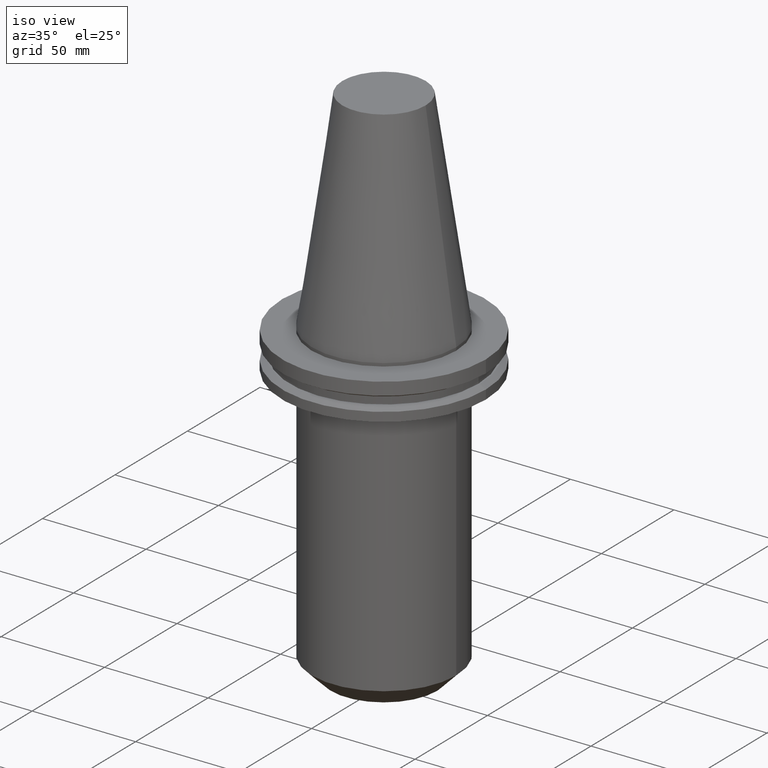
[diagram: clean part render]
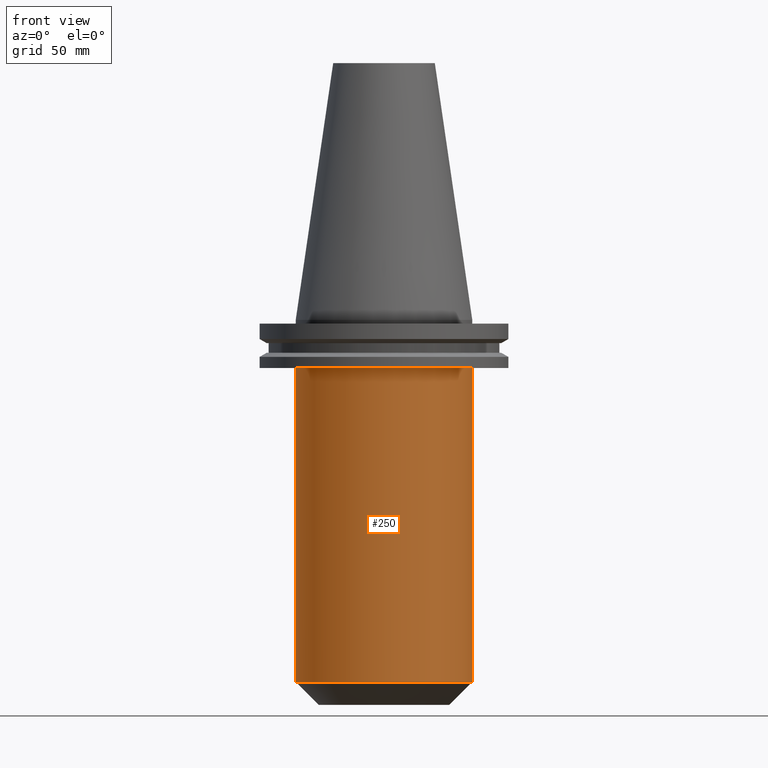
[diagram: tour spotlight — one face highlighted and labeled with its STEP entity id]
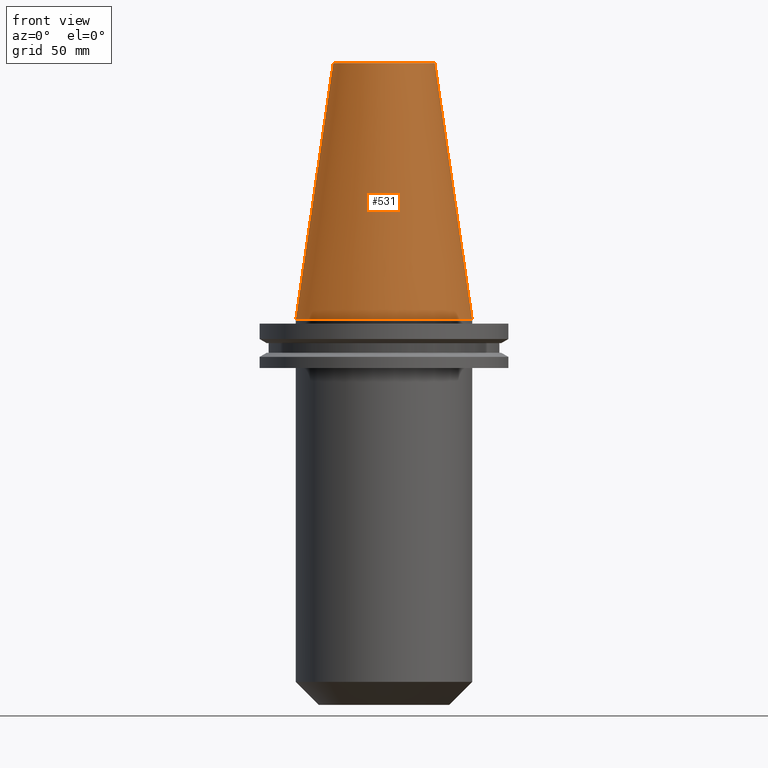
[diagram: tour spotlight — one face highlighted and labeled with its STEP entity id]
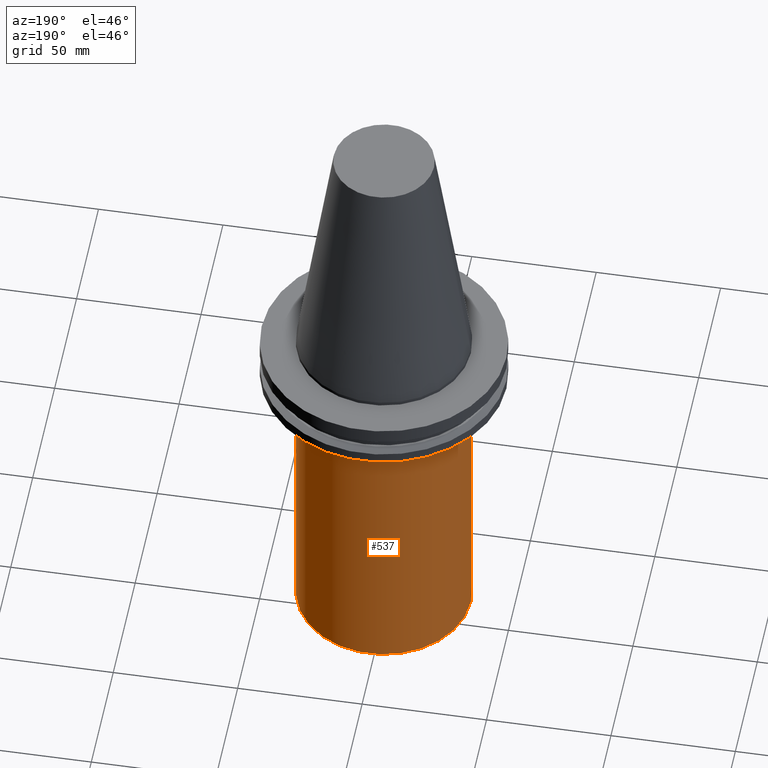
[diagram: tour spotlight — one face highlighted and labeled with its STEP entity id]
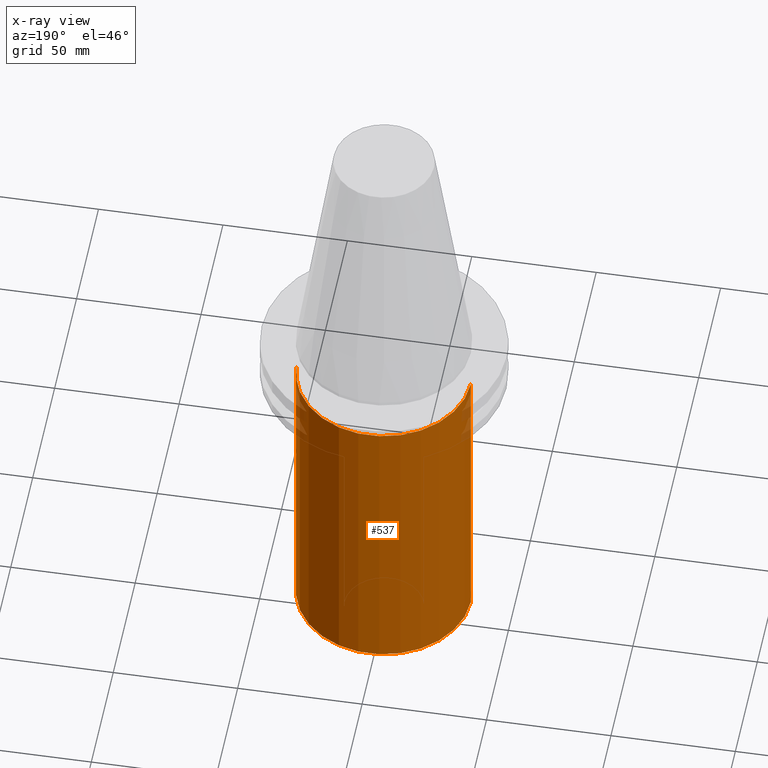
[diagram: x-ray of the same camera — body ghosted, this tour face saturated]
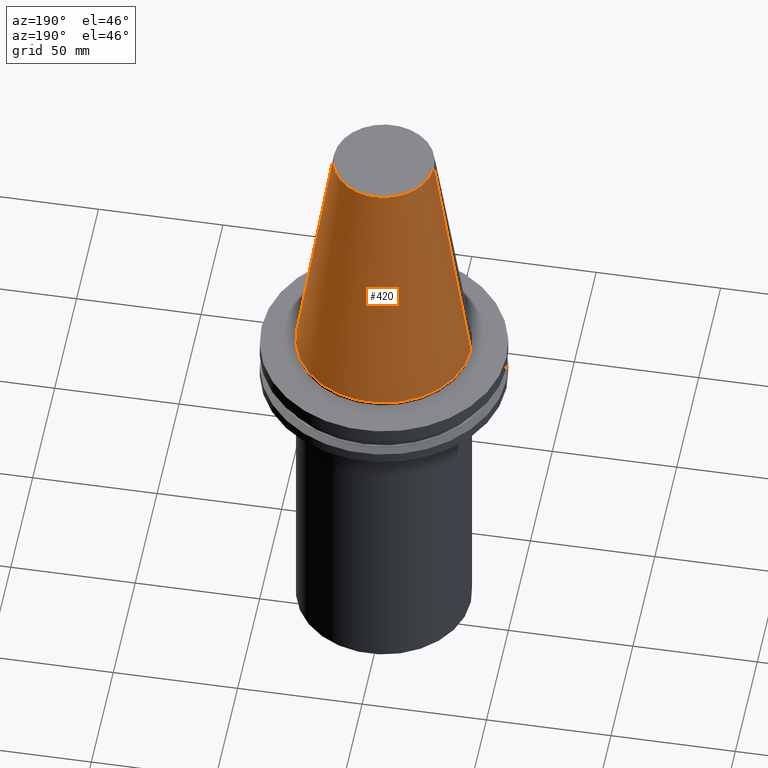
[diagram: tour spotlight — one face highlighted and labeled with its STEP entity id]
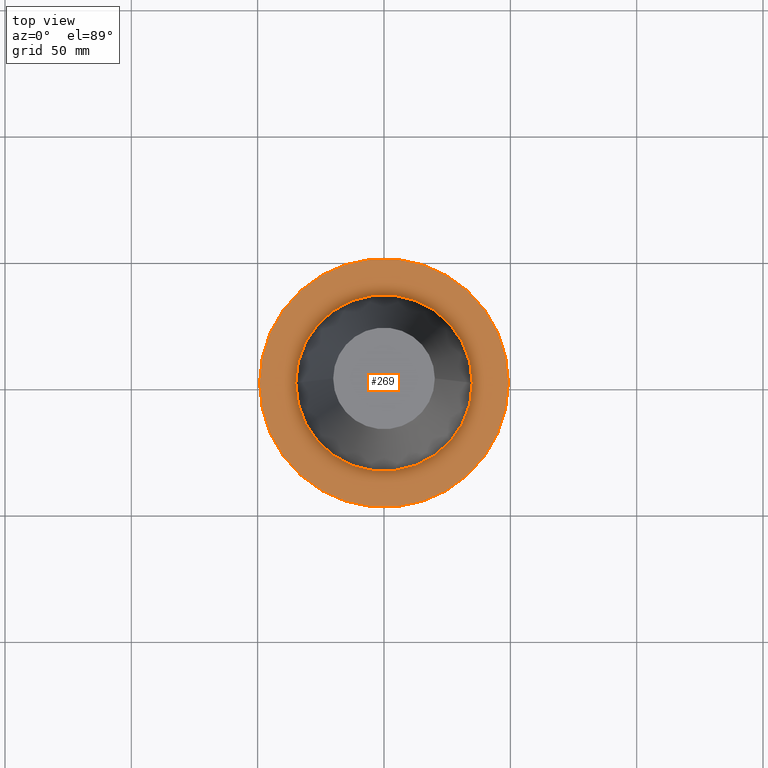
[diagram: tour spotlight — one face highlighted and labeled with its STEP entity id]
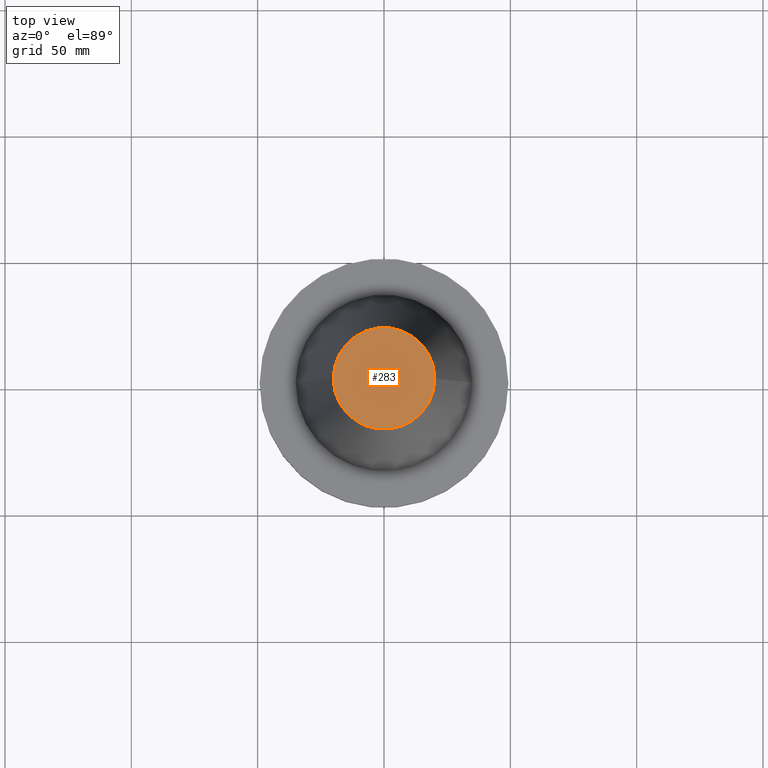
[diagram: tour spotlight — one face highlighted and labeled with its STEP entity id]
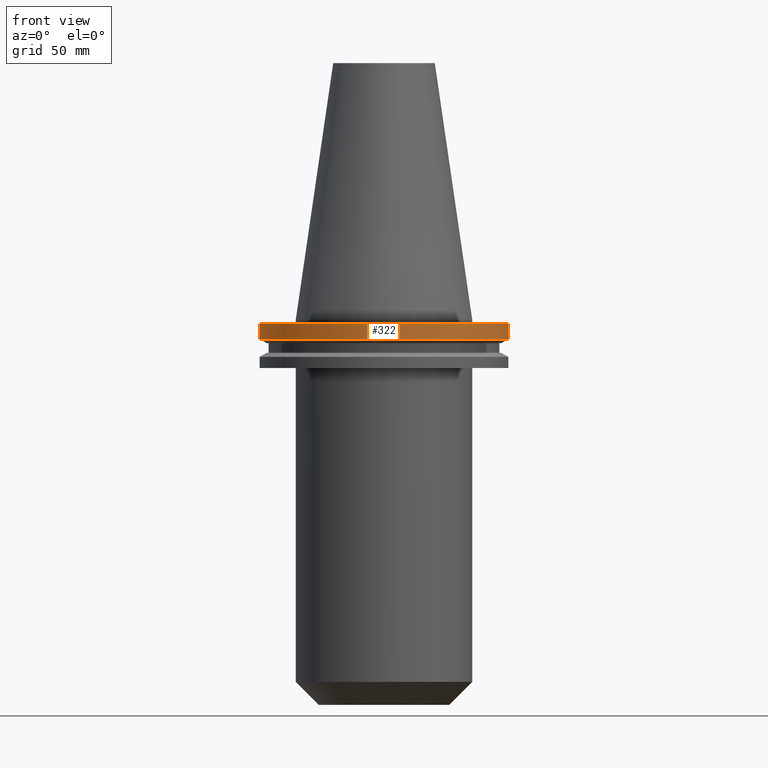
[diagram: tour spotlight — one face highlighted and labeled with its STEP entity id]
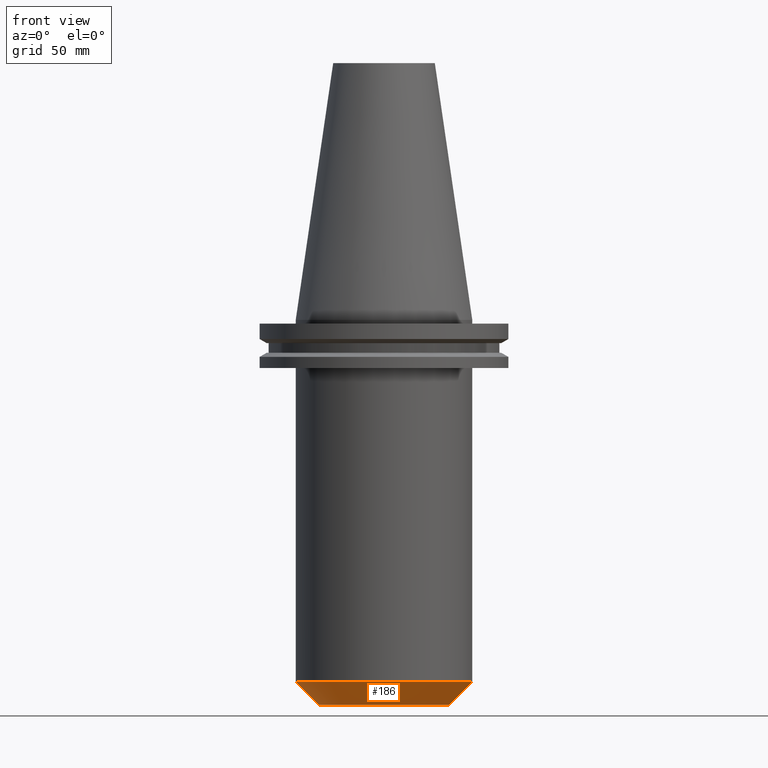
[diagram: tour spotlight — one face highlighted and labeled with its STEP entity id]
A machine part: a face-by-face anatomy tour. The part has 27 B-rep faces; the first image is the clean iso view, then the 8 largest visible faces are spotlighted one at a time (largest first), each with its STEP entity span.

Face 1 — front view, entity #250. In plain terms, the highlighted cylindrical surface (partial cylindrical patch) has radius 34.925 mm, axis along (-0, -0, 1).
Definition (entity closure, byte-faithful):
#21 = EDGE_CURVE ( 'NONE', #620, #563, #518, .T. ) ;
#36 = ORIENTED_EDGE ( 'NONE', *, *, #21, .F. ) ;
#86 = CYLINDRICAL_SURFACE ( 'NONE', #568, 34.92499999999999716 ) ;
#93 = ORIENTED_EDGE ( 'NONE', *, *, #560, .T. ) ;
#95 = AXIS2_PLACEMENT_3D ( 'NONE', #370, #355, #303 ) ;
#98 = EDGE_CURVE ( 'NONE', #361, #620, #316, .T. ) ;
#171 = CARTESIAN_POINT ( 'NONE',  ( -34.92500000000000426, 4.277078946022131676E-15, -143.3000000000000114 ) ) ;
#179 = EDGE_LOOP ( 'NONE', ( #643, #93, #447, #36 ) ) ;
#250 = ADVANCED_FACE ( 'NONE', ( #469 ), #86, .T. ) ;
#253 = CARTESIAN_POINT ( 'NONE',  ( -34.92499999999999716, 4.277078946022130887E-15, 101.5999999999999943 ) ) ;
#278 = DIRECTION ( 'NONE',  ( -0.000000000000000000, -0.000000000000000000, 1.000000000000000000 ) ) ;
#303 = DIRECTION ( 'NONE',  ( 1.000000000000000000, 0.000000000000000000, 0.000000000000000000 ) ) ;
#316 = LINE ( 'NONE', #253, #400 ) ;
#352 = LINE ( 'NONE', #596, #401 ) ;
#355 = DIRECTION ( 'NONE',  ( -0.000000000000000000, -0.000000000000000000, 1.000000000000000000 ) ) ;
#361 = VERTEX_POINT ( 'NONE', #171 ) ;
#370 = CARTESIAN_POINT ( 'NONE',  ( 0.000000000000000000, 0.000000000000000000, -19.04999999999999716 ) ) ;
#379 = VERTEX_POINT ( 'NONE', #481 ) ;
#380 = DIRECTION ( 'NONE',  ( -0.000000000000000000, -0.000000000000000000, 1.000000000000000000 ) ) ;
#400 = VECTOR ( 'NONE', #673, 1000.000000000000000 ) ;
#401 = VECTOR ( 'NONE', #766, 1000.000000000000000 ) ;
#424 = CIRCLE ( 'NONE', #539, 34.92500000000000426 ) ;
#445 = EDGE_CURVE ( 'NONE', #379, #563, #352, .T. ) ;
#447 = ORIENTED_EDGE ( 'NONE', *, *, #445, .T. ) ;
#469 = FACE_OUTER_BOUND ( 'NONE', #179, .T. ) ;
#481 = CARTESIAN_POINT ( 'NONE',  ( 34.92500000000000426, 0.000000000000000000, -143.3000000000000114 ) ) ;
#503 = DIRECTION ( 'NONE',  ( 1.000000000000000000, 0.000000000000000000, 0.000000000000000000 ) ) ;
#518 = CIRCLE ( 'NONE', #95, 34.92499999999999716 ) ;
#539 = AXIS2_PLACEMENT_3D ( 'NONE', #622, #380, #503 ) ;
#560 = EDGE_CURVE ( 'NONE', #361, #379, #424, .T. ) ;
#563 = VERTEX_POINT ( 'NONE', #564 ) ;
#564 = CARTESIAN_POINT ( 'NONE',  ( 34.92499999999999716, 0.000000000000000000, -19.04999999999999716 ) ) ;
#568 = AXIS2_PLACEMENT_3D ( 'NONE', #587, #278, #693 ) ;
#587 = CARTESIAN_POINT ( 'NONE',  ( 0.000000000000000000, 0.000000000000000000, 101.5999999999999943 ) ) ;
#596 = CARTESIAN_POINT ( 'NONE',  ( 34.92499999999999716, 0.000000000000000000, 101.5999999999999943 ) ) ;
#620 = VERTEX_POINT ( 'NONE', #630 ) ;
#622 = CARTESIAN_POINT ( 'NONE',  ( 0.000000000000000000, 0.000000000000000000, -143.3000000000000114 ) ) ;
#630 = CARTESIAN_POINT ( 'NONE',  ( -34.92499999999999716, 4.277078946022130887E-15, -19.04999999999999716 ) ) ;
#643 = ORIENTED_EDGE ( 'NONE', *, *, #98, .F. ) ;
#673 = DIRECTION ( 'NONE',  ( -0.000000000000000000, -0.000000000000000000, 1.000000000000000000 ) ) ;
#693 = DIRECTION ( 'NONE',  ( 1.000000000000000000, 0.000000000000000000, 0.000000000000000000 ) ) ;
#766 = DIRECTION ( 'NONE',  ( -0.000000000000000000, -0.000000000000000000, 1.000000000000000000 ) ) ;

Face 2 — front view, entity #531. In plain terms, the highlighted conical surface has half-angle 8.297 deg.
Definition (entity closure, byte-faithful):
#7 = DIRECTION ( 'NONE',  ( 0.000000000000000000, 0.000000000000000000, -1.000000000000000000 ) ) ;
#13 = AXIS2_PLACEMENT_3D ( 'NONE', #203, #569, #691 ) ;
#28 = DIRECTION ( 'NONE',  ( 1.000000000000000000, 0.000000000000000000, 0.000000000000000000 ) ) ;
#73 = ORIENTED_EDGE ( 'NONE', *, *, #631, .T. ) ;
#78 = DIRECTION ( 'NONE',  ( -0.000000000000000000, -0.000000000000000000, 1.000000000000000000 ) ) ;
#83 = EDGE_CURVE ( 'NONE', #440, #247, #675, .T. ) ;
#117 = ORIENTED_EDGE ( 'NONE', *, *, #406, .F. ) ;
#118 = AXIS2_PLACEMENT_3D ( 'NONE', #624, #7, #441 ) ;
#135 = ORIENTED_EDGE ( 'NONE', *, *, #83, .F. ) ;
#194 = VERTEX_POINT ( 'NONE', #337 ) ;
#203 = CARTESIAN_POINT ( 'NONE',  ( 0.000000000000000000, 0.000000000000000000, 101.5999999999999801 ) ) ;
#247 = VERTEX_POINT ( 'NONE', #638 ) ;
#262 = CARTESIAN_POINT ( 'NONE',  ( -34.92499999999999005, 0.000000000000000000, 0.000000000000000000 ) ) ;
#264 = CIRCLE ( 'NONE', #703, 34.92499999999999005 ) ;
#302 = LINE ( 'NONE', #541, #308 ) ;
#308 = VECTOR ( 'NONE', #592, 999.9999999999998863 ) ;
#335 = DIRECTION ( 'NONE',  ( -0.1443082272672999988, 0.000000000000000000, -0.9895327864921755756 ) ) ;
#337 = CARTESIAN_POINT ( 'NONE',  ( -34.92499999999999005, 0.000000000000000000, 0.000000000000000000 ) ) ;
#351 = ORIENTED_EDGE ( 'NONE', *, *, #727, .T. ) ;
#356 = VECTOR ( 'NONE', #335, 999.9999999999998863 ) ;
#389 = FACE_OUTER_BOUND ( 'NONE', #769, .T. ) ;
#402 = LINE ( 'NONE', #262, #356 ) ;
#406 = EDGE_CURVE ( 'NONE', #247, #570, #302, .T. ) ;
#440 = VERTEX_POINT ( 'NONE', #645 ) ;
#441 = DIRECTION ( 'NONE',  ( -1.000000000000000000, 0.000000000000000000, 0.000000000000000000 ) ) ;
#531 = ADVANCED_FACE ( 'NONE', ( #389 ), #668, .T. ) ;
#541 = CARTESIAN_POINT ( 'NONE',  ( 34.92499999999999005, 4.277078946022130098E-15, 0.000000000000000000 ) ) ;
#569 = DIRECTION ( 'NONE',  ( -0.000000000000000000, -0.000000000000000000, 1.000000000000000000 ) ) ;
#570 = VERTEX_POINT ( 'NONE', #732 ) ;
#592 = DIRECTION ( 'NONE',  ( 0.1443082272672999988, 1.767266086135277066E-17, -0.9895327864921755756 ) ) ;
#624 = CARTESIAN_POINT ( 'NONE',  ( 0.000000000000000000, 0.000000000000000000, 0.000000000000000000 ) ) ;
#631 = EDGE_CURVE ( 'NONE', #194, #570, #264, .T. ) ;
#637 = CARTESIAN_POINT ( 'NONE',  ( 0.000000000000000000, 0.000000000000000000, 0.000000000000000000 ) ) ;
#638 = CARTESIAN_POINT ( 'NONE',  ( 20.10819343178871321, 3.369811209154858606E-15, 101.5999999999999801 ) ) ;
#645 = CARTESIAN_POINT ( 'NONE',  ( -20.10819343178871321, 0.000000000000000000, 101.5999999999999801 ) ) ;
#668 = CONICAL_SURFACE ( 'NONE', #118, 34.92499999999999005, 0.1448138465474119452 ) ;
#675 = CIRCLE ( 'NONE', #13, 20.10819343178871321 ) ;
#691 = DIRECTION ( 'NONE',  ( 1.000000000000000000, 0.000000000000000000, 0.000000000000000000 ) ) ;
#703 = AXIS2_PLACEMENT_3D ( 'NONE', #637, #78, #28 ) ;
#727 = EDGE_CURVE ( 'NONE', #440, #194, #402, .T. ) ;
#732 = CARTESIAN_POINT ( 'NONE',  ( 34.92499999999999005, 4.277078946022130098E-15, 0.000000000000000000 ) ) ;
#769 = EDGE_LOOP ( 'NONE', ( #117, #135, #351, #73 ) ) ;

Face 3 — auxiliary view, entity #537. An x-ray twin of the same camera follows (body ghosted, this face saturated) — the face is partly hidden behind the body. In plain terms, the highlighted cylindrical surface (partial cylindrical patch) has radius 34.925 mm, axis along (-0, -0, 1).
Definition (entity closure, byte-faithful):
#46 = CIRCLE ( 'NONE', #562, 34.92500000000000426 ) ;
#71 = CARTESIAN_POINT ( 'NONE',  ( 0.000000000000000000, 0.000000000000000000, -19.04999999999999716 ) ) ;
#98 = EDGE_CURVE ( 'NONE', #361, #620, #316, .T. ) ;
#127 = ORIENTED_EDGE ( 'NONE', *, *, #514, .T. ) ;
#154 = CIRCLE ( 'NONE', #740, 34.92499999999999716 ) ;
#171 = CARTESIAN_POINT ( 'NONE',  ( -34.92500000000000426, 4.277078946022131676E-15, -143.3000000000000114 ) ) ;
#196 = DIRECTION ( 'NONE',  ( -0.000000000000000000, -0.000000000000000000, 1.000000000000000000 ) ) ;
#245 = DIRECTION ( 'NONE',  ( -0.000000000000000000, -0.000000000000000000, 1.000000000000000000 ) ) ;
#252 = CYLINDRICAL_SURFACE ( 'NONE', #472, 34.92499999999999716 ) ;
#253 = CARTESIAN_POINT ( 'NONE',  ( -34.92499999999999716, 4.277078946022130887E-15, 101.5999999999999943 ) ) ;
#259 = DIRECTION ( 'NONE',  ( 1.000000000000000000, 0.000000000000000000, 0.000000000000000000 ) ) ;
#311 = DIRECTION ( 'NONE',  ( 1.000000000000000000, 0.000000000000000000, 0.000000000000000000 ) ) ;
#316 = LINE ( 'NONE', #253, #400 ) ;
#318 = DIRECTION ( 'NONE',  ( -0.000000000000000000, -0.000000000000000000, 1.000000000000000000 ) ) ;
#352 = LINE ( 'NONE', #596, #401 ) ;
#361 = VERTEX_POINT ( 'NONE', #171 ) ;
#363 = ORIENTED_EDGE ( 'NONE', *, *, #98, .T. ) ;
#378 = FACE_OUTER_BOUND ( 'NONE', #480, .T. ) ;
#379 = VERTEX_POINT ( 'NONE', #481 ) ;
#400 = VECTOR ( 'NONE', #673, 1000.000000000000000 ) ;
#401 = VECTOR ( 'NONE', #766, 1000.000000000000000 ) ;
#445 = EDGE_CURVE ( 'NONE', #379, #563, #352, .T. ) ;
#452 = DIRECTION ( 'NONE',  ( 1.000000000000000000, 0.000000000000000000, 0.000000000000000000 ) ) ;
#472 = AXIS2_PLACEMENT_3D ( 'NONE', #567, #196, #311 ) ;
#480 = EDGE_LOOP ( 'NONE', ( #127, #363, #547, #722 ) ) ;
#481 = CARTESIAN_POINT ( 'NONE',  ( 34.92500000000000426, 0.000000000000000000, -143.3000000000000114 ) ) ;
#511 = CARTESIAN_POINT ( 'NONE',  ( 0.000000000000000000, 0.000000000000000000, -143.3000000000000114 ) ) ;
#514 = EDGE_CURVE ( 'NONE', #379, #361, #46, .T. ) ;
#537 = ADVANCED_FACE ( 'NONE', ( #378 ), #252, .T. ) ;
#547 = ORIENTED_EDGE ( 'NONE', *, *, #577, .F. ) ;
#562 = AXIS2_PLACEMENT_3D ( 'NONE', #511, #245, #452 ) ;
#563 = VERTEX_POINT ( 'NONE', #564 ) ;
#564 = CARTESIAN_POINT ( 'NONE',  ( 34.92499999999999716, 0.000000000000000000, -19.04999999999999716 ) ) ;
#567 = CARTESIAN_POINT ( 'NONE',  ( 0.000000000000000000, 0.000000000000000000, 101.5999999999999943 ) ) ;
#577 = EDGE_CURVE ( 'NONE', #563, #620, #154, .T. ) ;
#596 = CARTESIAN_POINT ( 'NONE',  ( 34.92499999999999716, 0.000000000000000000, 101.5999999999999943 ) ) ;
#620 = VERTEX_POINT ( 'NONE', #630 ) ;
#630 = CARTESIAN_POINT ( 'NONE',  ( -34.92499999999999716, 4.277078946022130887E-15, -19.04999999999999716 ) ) ;
#673 = DIRECTION ( 'NONE',  ( -0.000000000000000000, -0.000000000000000000, 1.000000000000000000 ) ) ;
#722 = ORIENTED_EDGE ( 'NONE', *, *, #445, .F. ) ;
#740 = AXIS2_PLACEMENT_3D ( 'NONE', #71, #318, #259 ) ;
#766 = DIRECTION ( 'NONE',  ( -0.000000000000000000, -0.000000000000000000, 1.000000000000000000 ) ) ;

Face 4 — auxiliary view, entity #420. In plain terms, the highlighted conical surface has half-angle 8.297 deg.
Definition (entity closure, byte-faithful):
#6 = EDGE_CURVE ( 'NONE', #570, #194, #330, .T. ) ;
#19 = CARTESIAN_POINT ( 'NONE',  ( 0.000000000000000000, 0.000000000000000000, 101.5999999999999801 ) ) ;
#58 = DIRECTION ( 'NONE',  ( 1.000000000000000000, 0.000000000000000000, 0.000000000000000000 ) ) ;
#88 = AXIS2_PLACEMENT_3D ( 'NONE', #19, #585, #515 ) ;
#110 = DIRECTION ( 'NONE',  ( 0.000000000000000000, 0.000000000000000000, -1.000000000000000000 ) ) ;
#163 = DIRECTION ( 'NONE',  ( -0.000000000000000000, -0.000000000000000000, 1.000000000000000000 ) ) ;
#194 = VERTEX_POINT ( 'NONE', #337 ) ;
#227 = DIRECTION ( 'NONE',  ( -1.000000000000000000, 0.000000000000000000, 0.000000000000000000 ) ) ;
#243 = ORIENTED_EDGE ( 'NONE', *, *, #6, .T. ) ;
#247 = VERTEX_POINT ( 'NONE', #638 ) ;
#262 = CARTESIAN_POINT ( 'NONE',  ( -34.92499999999999005, 0.000000000000000000, 0.000000000000000000 ) ) ;
#287 = FACE_OUTER_BOUND ( 'NONE', #683, .T. ) ;
#302 = LINE ( 'NONE', #541, #308 ) ;
#308 = VECTOR ( 'NONE', #592, 999.9999999999998863 ) ;
#320 = ORIENTED_EDGE ( 'NONE', *, *, #733, .F. ) ;
#330 = CIRCLE ( 'NONE', #615, 34.92499999999999005 ) ;
#335 = DIRECTION ( 'NONE',  ( -0.1443082272672999988, 0.000000000000000000, -0.9895327864921755756 ) ) ;
#337 = CARTESIAN_POINT ( 'NONE',  ( -34.92499999999999005, 0.000000000000000000, 0.000000000000000000 ) ) ;
#356 = VECTOR ( 'NONE', #335, 999.9999999999998863 ) ;
#359 = CARTESIAN_POINT ( 'NONE',  ( 0.000000000000000000, 0.000000000000000000, 0.000000000000000000 ) ) ;
#402 = LINE ( 'NONE', #262, #356 ) ;
#406 = EDGE_CURVE ( 'NONE', #247, #570, #302, .T. ) ;
#419 = CONICAL_SURFACE ( 'NONE', #544, 34.92499999999999005, 0.1448138465474119452 ) ;
#420 = ADVANCED_FACE ( 'NONE', ( #287 ), #419, .T. ) ;
#440 = VERTEX_POINT ( 'NONE', #645 ) ;
#450 = CIRCLE ( 'NONE', #88, 20.10819343178871321 ) ;
#515 = DIRECTION ( 'NONE',  ( 1.000000000000000000, 0.000000000000000000, 0.000000000000000000 ) ) ;
#541 = CARTESIAN_POINT ( 'NONE',  ( 34.92499999999999005, 4.277078946022130098E-15, 0.000000000000000000 ) ) ;
#544 = AXIS2_PLACEMENT_3D ( 'NONE', #359, #110, #227 ) ;
#570 = VERTEX_POINT ( 'NONE', #732 ) ;
#585 = DIRECTION ( 'NONE',  ( -0.000000000000000000, -0.000000000000000000, 1.000000000000000000 ) ) ;
#592 = DIRECTION ( 'NONE',  ( 0.1443082272672999988, 1.767266086135277066E-17, -0.9895327864921755756 ) ) ;
#612 = CARTESIAN_POINT ( 'NONE',  ( 0.000000000000000000, 0.000000000000000000, 0.000000000000000000 ) ) ;
#615 = AXIS2_PLACEMENT_3D ( 'NONE', #612, #163, #58 ) ;
#638 = CARTESIAN_POINT ( 'NONE',  ( 20.10819343178871321, 3.369811209154858606E-15, 101.5999999999999801 ) ) ;
#645 = CARTESIAN_POINT ( 'NONE',  ( -20.10819343178871321, 0.000000000000000000, 101.5999999999999801 ) ) ;
#674 = ORIENTED_EDGE ( 'NONE', *, *, #406, .T. ) ;
#683 = EDGE_LOOP ( 'NONE', ( #320, #674, #243, #718 ) ) ;
#718 = ORIENTED_EDGE ( 'NONE', *, *, #727, .F. ) ;
#727 = EDGE_CURVE ( 'NONE', #440, #194, #402, .T. ) ;
#732 = CARTESIAN_POINT ( 'NONE',  ( 34.92499999999999005, 4.277078946022130098E-15, 0.000000000000000000 ) ) ;
#733 = EDGE_CURVE ( 'NONE', #247, #440, #450, .T. ) ;

Face 5 — top view, entity #269. In plain terms, the highlighted planar face has unit normal (0, 0, -1).
Definition (entity closure, byte-faithful):
#57 = DIRECTION ( 'NONE',  ( -0.000000000000000000, -0.000000000000000000, 1.000000000000000000 ) ) ;
#61 = AXIS2_PLACEMENT_3D ( 'NONE', #398, #646, #527 ) ;
#76 = CARTESIAN_POINT ( 'NONE',  ( 0.000000000000000000, 0.000000000000000000, -1.499999999999987566 ) ) ;
#103 = CIRCLE ( 'NONE', #210, 49.21499999999999631 ) ;
#149 = CARTESIAN_POINT ( 'NONE',  ( 34.92499999999999005, 0.000000000000000000, -1.499999999999987566 ) ) ;
#208 = EDGE_CURVE ( 'NONE', #605, #523, #616, .T. ) ;
#210 = AXIS2_PLACEMENT_3D ( 'NONE', #628, #215, #698 ) ;
#211 = FACE_BOUND ( 'NONE', #415, .T. ) ;
#215 = DIRECTION ( 'NONE',  ( -0.000000000000000000, -0.000000000000000000, 1.000000000000000000 ) ) ;
#269 = ADVANCED_FACE ( 'NONE', ( #211, #699 ), #755, .F. ) ;
#286 = ORIENTED_EDGE ( 'NONE', *, *, #713, .T. ) ;
#305 = DIRECTION ( 'NONE',  ( 1.000000000000000000, 0.000000000000000000, 0.000000000000000000 ) ) ;
#309 = ORIENTED_EDGE ( 'NONE', *, *, #478, .F. ) ;
#391 = AXIS2_PLACEMENT_3D ( 'NONE', #529, #702, #462 ) ;
#398 = CARTESIAN_POINT ( 'NONE',  ( 0.000000000000000000, 0.000000000000000000, -1.499999999999987566 ) ) ;
#415 = EDGE_LOOP ( 'NONE', ( #552, #309 ) ) ;
#444 = CARTESIAN_POINT ( 'NONE',  ( 0.000000000000000000, 0.000000000000000000, -1.499999999999987566 ) ) ;
#446 = CIRCLE ( 'NONE', #545, 34.92499999999999005 ) ;
#460 = CIRCLE ( 'NONE', #500, 49.21499999999999631 ) ;
#462 = DIRECTION ( 'NONE',  ( -1.000000000000000000, 0.000000000000000000, -0.000000000000000000 ) ) ;
#478 = EDGE_CURVE ( 'NONE', #523, #605, #446, .T. ) ;
#493 = CARTESIAN_POINT ( 'NONE',  ( -34.92499999999999005, 4.277078946022130098E-15, -1.499999999999987566 ) ) ;
#500 = AXIS2_PLACEMENT_3D ( 'NONE', #76, #751, #747 ) ;
#523 = VERTEX_POINT ( 'NONE', #493 ) ;
#527 = DIRECTION ( 'NONE',  ( 1.000000000000000000, 0.000000000000000000, 0.000000000000000000 ) ) ;
#528 = CARTESIAN_POINT ( 'NONE',  ( -49.21499999999999631, 6.027099222003697826E-15, -1.499999999999987566 ) ) ;
#529 = CARTESIAN_POINT ( 'NONE',  ( 0.000000000000000000, 49.21499999999999631, -1.499999999999992895 ) ) ;
#545 = AXIS2_PLACEMENT_3D ( 'NONE', #444, #57, #305 ) ;
#552 = ORIENTED_EDGE ( 'NONE', *, *, #208, .F. ) ;
#605 = VERTEX_POINT ( 'NONE', #149 ) ;
#613 = ORIENTED_EDGE ( 'NONE', *, *, #686, .T. ) ;
#616 = CIRCLE ( 'NONE', #61, 34.92499999999999005 ) ;
#628 = CARTESIAN_POINT ( 'NONE',  ( 0.000000000000000000, 0.000000000000000000, -1.499999999999987566 ) ) ;
#646 = DIRECTION ( 'NONE',  ( -0.000000000000000000, -0.000000000000000000, 1.000000000000000000 ) ) ;
#661 = VERTEX_POINT ( 'NONE', #749 ) ;
#663 = VERTEX_POINT ( 'NONE', #528 ) ;
#686 = EDGE_CURVE ( 'NONE', #661, #663, #460, .T. ) ;
#698 = DIRECTION ( 'NONE',  ( 1.000000000000000000, 0.000000000000000000, 0.000000000000000000 ) ) ;
#699 = FACE_OUTER_BOUND ( 'NONE', #719, .T. ) ;
#702 = DIRECTION ( 'NONE',  ( 0.000000000000000000, 0.000000000000000000, -1.000000000000000000 ) ) ;
#713 = EDGE_CURVE ( 'NONE', #663, #661, #103, .T. ) ;
#719 = EDGE_LOOP ( 'NONE', ( #613, #286 ) ) ;
#747 = DIRECTION ( 'NONE',  ( 1.000000000000000000, 0.000000000000000000, 0.000000000000000000 ) ) ;
#749 = CARTESIAN_POINT ( 'NONE',  ( 49.21499999999999631, 0.000000000000000000, -1.499999999999987566 ) ) ;
#751 = DIRECTION ( 'NONE',  ( -0.000000000000000000, -0.000000000000000000, 1.000000000000000000 ) ) ;
#755 = PLANE ( 'NONE',  #391 ) ;

Face 6 — top view, entity #283. In plain terms, the highlighted planar face has unit normal (0, 0, -1).
Definition (entity closure, byte-faithful):
#13 = AXIS2_PLACEMENT_3D ( 'NONE', #203, #569, #691 ) ;
#19 = CARTESIAN_POINT ( 'NONE',  ( 0.000000000000000000, 0.000000000000000000, 101.5999999999999801 ) ) ;
#83 = EDGE_CURVE ( 'NONE', #440, #247, #675, .T. ) ;
#88 = AXIS2_PLACEMENT_3D ( 'NONE', #19, #585, #515 ) ;
#105 = ORIENTED_EDGE ( 'NONE', *, *, #83, .T. ) ;
#203 = CARTESIAN_POINT ( 'NONE',  ( 0.000000000000000000, 0.000000000000000000, 101.5999999999999801 ) ) ;
#218 = DIRECTION ( 'NONE',  ( -1.000000000000000000, 0.000000000000000000, -0.000000000000000000 ) ) ;
#247 = VERTEX_POINT ( 'NONE', #638 ) ;
#283 = ADVANCED_FACE ( 'NONE', ( #641 ), #343, .F. ) ;
#284 = DIRECTION ( 'NONE',  ( 0.000000000000000000, 0.000000000000000000, -1.000000000000000000 ) ) ;
#319 = AXIS2_PLACEMENT_3D ( 'NONE', #588, #284, #218 ) ;
#343 = PLANE ( 'NONE',  #319 ) ;
#440 = VERTEX_POINT ( 'NONE', #645 ) ;
#450 = CIRCLE ( 'NONE', #88, 20.10819343178871321 ) ;
#515 = DIRECTION ( 'NONE',  ( 1.000000000000000000, 0.000000000000000000, 0.000000000000000000 ) ) ;
#569 = DIRECTION ( 'NONE',  ( -0.000000000000000000, -0.000000000000000000, 1.000000000000000000 ) ) ;
#585 = DIRECTION ( 'NONE',  ( -0.000000000000000000, -0.000000000000000000, 1.000000000000000000 ) ) ;
#588 = CARTESIAN_POINT ( 'NONE',  ( 0.000000000000000000, 20.10819343178871321, 101.5999999999999943 ) ) ;
#638 = CARTESIAN_POINT ( 'NONE',  ( 20.10819343178871321, 3.369811209154858606E-15, 101.5999999999999801 ) ) ;
#641 = FACE_OUTER_BOUND ( 'NONE', #697, .T. ) ;
#645 = CARTESIAN_POINT ( 'NONE',  ( -20.10819343178871321, 0.000000000000000000, 101.5999999999999801 ) ) ;
#675 = CIRCLE ( 'NONE', #13, 20.10819343178871321 ) ;
#691 = DIRECTION ( 'NONE',  ( 1.000000000000000000, 0.000000000000000000, 0.000000000000000000 ) ) ;
#697 = EDGE_LOOP ( 'NONE', ( #105, #708 ) ) ;
#708 = ORIENTED_EDGE ( 'NONE', *, *, #733, .T. ) ;
#733 = EDGE_CURVE ( 'NONE', #247, #440, #450, .T. ) ;

Face 7 — front view, entity #322. In plain terms, the highlighted cylindrical surface (partial cylindrical patch) has radius 49.215 mm, axis along (-0, -0, 1).
Definition (entity closure, byte-faithful):
#29 = CARTESIAN_POINT ( 'NONE',  ( 0.000000000000000000, 0.000000000000000000, -7.602389855251287187 ) ) ;
#56 = EDGE_LOOP ( 'NONE', ( #301, #131, #113, #688 ) ) ;
#63 = LINE ( 'NONE', #141, #466 ) ;
#90 = LINE ( 'NONE', #465, #626 ) ;
#91 = EDGE_CURVE ( 'NONE', #443, #661, #63, .T. ) ;
#101 = CARTESIAN_POINT ( 'NONE',  ( 49.21500000000000341, 0.000000000000000000, -7.602389855251287187 ) ) ;
#103 = CIRCLE ( 'NONE', #210, 49.21499999999999631 ) ;
#113 = ORIENTED_EDGE ( 'NONE', *, *, #91, .T. ) ;
#131 = ORIENTED_EDGE ( 'NONE', *, *, #237, .T. ) ;
#141 = CARTESIAN_POINT ( 'NONE',  ( 49.21499999999999631, 0.000000000000000000, 101.5999999999999943 ) ) ;
#182 = CYLINDRICAL_SURFACE ( 'NONE', #229, 49.21499999999999631 ) ;
#210 = AXIS2_PLACEMENT_3D ( 'NONE', #628, #215, #698 ) ;
#215 = DIRECTION ( 'NONE',  ( -0.000000000000000000, -0.000000000000000000, 1.000000000000000000 ) ) ;
#220 = EDGE_CURVE ( 'NONE', #388, #663, #90, .T. ) ;
#229 = AXIS2_PLACEMENT_3D ( 'NONE', #349, #353, #360 ) ;
#237 = EDGE_CURVE ( 'NONE', #388, #443, #690, .T. ) ;
#294 = AXIS2_PLACEMENT_3D ( 'NONE', #29, #473, #405 ) ;
#301 = ORIENTED_EDGE ( 'NONE', *, *, #220, .F. ) ;
#322 = ADVANCED_FACE ( 'NONE', ( #725 ), #182, .T. ) ;
#349 = CARTESIAN_POINT ( 'NONE',  ( 0.000000000000000000, 0.000000000000000000, 101.5999999999999943 ) ) ;
#353 = DIRECTION ( 'NONE',  ( -0.000000000000000000, -0.000000000000000000, 1.000000000000000000 ) ) ;
#360 = DIRECTION ( 'NONE',  ( 1.000000000000000000, 0.000000000000000000, 0.000000000000000000 ) ) ;
#388 = VERTEX_POINT ( 'NONE', #659 ) ;
#405 = DIRECTION ( 'NONE',  ( 1.000000000000000000, 0.000000000000000000, 0.000000000000000000 ) ) ;
#443 = VERTEX_POINT ( 'NONE', #101 ) ;
#465 = CARTESIAN_POINT ( 'NONE',  ( -49.21499999999999631, 6.027099222003697826E-15, 101.5999999999999943 ) ) ;
#466 = VECTOR ( 'NONE', #629, 1000.000000000000000 ) ;
#473 = DIRECTION ( 'NONE',  ( -0.000000000000000000, -0.000000000000000000, 1.000000000000000000 ) ) ;
#528 = CARTESIAN_POINT ( 'NONE',  ( -49.21499999999999631, 6.027099222003697826E-15, -1.499999999999987566 ) ) ;
#533 = DIRECTION ( 'NONE',  ( -0.000000000000000000, -0.000000000000000000, 1.000000000000000000 ) ) ;
#626 = VECTOR ( 'NONE', #533, 1000.000000000000000 ) ;
#628 = CARTESIAN_POINT ( 'NONE',  ( 0.000000000000000000, 0.000000000000000000, -1.499999999999987566 ) ) ;
#629 = DIRECTION ( 'NONE',  ( -0.000000000000000000, -0.000000000000000000, 1.000000000000000000 ) ) ;
#659 = CARTESIAN_POINT ( 'NONE',  ( -49.21500000000000341, 6.027099222003699404E-15, -7.602389855251287187 ) ) ;
#661 = VERTEX_POINT ( 'NONE', #749 ) ;
#663 = VERTEX_POINT ( 'NONE', #528 ) ;
#688 = ORIENTED_EDGE ( 'NONE', *, *, #713, .F. ) ;
#690 = CIRCLE ( 'NONE', #294, 49.21500000000000341 ) ;
#698 = DIRECTION ( 'NONE',  ( 1.000000000000000000, 0.000000000000000000, 0.000000000000000000 ) ) ;
#713 = EDGE_CURVE ( 'NONE', #663, #661, #103, .T. ) ;
#725 = FACE_OUTER_BOUND ( 'NONE', #56, .T. ) ;
#749 = CARTESIAN_POINT ( 'NONE',  ( 49.21499999999999631, 0.000000000000000000, -1.499999999999987566 ) ) ;

Face 8 — front view, entity #186. In plain terms, the highlighted conical surface has half-angle 45 deg.
Definition (entity closure, byte-faithful):
#4 = CARTESIAN_POINT ( 'NONE',  ( 25.82499999999999218, 0.000000000000000000, -152.4000000000000057 ) ) ;
#10 = DIRECTION ( 'NONE',  ( -0.000000000000000000, -0.000000000000000000, 1.000000000000000000 ) ) ;
#45 = AXIS2_PLACEMENT_3D ( 'NONE', #576, #459, #409 ) ;
#136 = DIRECTION ( 'NONE',  ( 0.7071067811865481278, 0.000000000000000000, 0.7071067811865470176 ) ) ;
#150 = CIRCLE ( 'NONE', #257, 25.82499999999999218 ) ;
#153 = DIRECTION ( 'NONE',  ( -0.7071067811865481278, 8.659560562354940254E-17, 0.7071067811865470176 ) ) ;
#171 = CARTESIAN_POINT ( 'NONE',  ( -34.92500000000000426, 4.277078946022131676E-15, -143.3000000000000114 ) ) ;
#186 = ADVANCED_FACE ( 'NONE', ( #634 ), #700, .T. ) ;
#216 = VECTOR ( 'NONE', #153, 1000.000000000000000 ) ;
#217 = CARTESIAN_POINT ( 'NONE',  ( -25.82499999999999218, 3.162650358798038830E-15, -152.4000000000000057 ) ) ;
#222 = ORIENTED_EDGE ( 'NONE', *, *, #457, .T. ) ;
#257 = AXIS2_PLACEMENT_3D ( 'NONE', #685, #10, #614 ) ;
#279 = EDGE_CURVE ( 'NONE', #546, #361, #334, .T. ) ;
#313 = CARTESIAN_POINT ( 'NONE',  ( -25.82499999999999218, 3.719864652410084858E-15, -152.4000000000000057 ) ) ;
#334 = LINE ( 'NONE', #217, #216 ) ;
#358 = VERTEX_POINT ( 'NONE', #369 ) ;
#361 = VERTEX_POINT ( 'NONE', #171 ) ;
#369 = CARTESIAN_POINT ( 'NONE',  ( 25.82499999999999218, 0.000000000000000000, -152.4000000000000057 ) ) ;
#379 = VERTEX_POINT ( 'NONE', #481 ) ;
#380 = DIRECTION ( 'NONE',  ( -0.000000000000000000, -0.000000000000000000, 1.000000000000000000 ) ) ;
#383 = ORIENTED_EDGE ( 'NONE', *, *, #279, .F. ) ;
#403 = VECTOR ( 'NONE', #136, 1000.000000000000000 ) ;
#409 = DIRECTION ( 'NONE',  ( 1.000000000000000000, 0.000000000000000000, 0.000000000000000000 ) ) ;
#424 = CIRCLE ( 'NONE', #539, 34.92500000000000426 ) ;
#434 = ORIENTED_EDGE ( 'NONE', *, *, #502, .T. ) ;
#457 = EDGE_CURVE ( 'NONE', #546, #358, #150, .T. ) ;
#459 = DIRECTION ( 'NONE',  ( -0.000000000000000000, -0.000000000000000000, 1.000000000000000000 ) ) ;
#481 = CARTESIAN_POINT ( 'NONE',  ( 34.92500000000000426, 0.000000000000000000, -143.3000000000000114 ) ) ;
#502 = EDGE_CURVE ( 'NONE', #358, #379, #736, .T. ) ;
#503 = DIRECTION ( 'NONE',  ( 1.000000000000000000, 0.000000000000000000, 0.000000000000000000 ) ) ;
#539 = AXIS2_PLACEMENT_3D ( 'NONE', #622, #380, #503 ) ;
#546 = VERTEX_POINT ( 'NONE', #313 ) ;
#560 = EDGE_CURVE ( 'NONE', #361, #379, #424, .T. ) ;
#576 = CARTESIAN_POINT ( 'NONE',  ( 0.000000000000000000, 0.000000000000000000, -152.4000000000000057 ) ) ;
#595 = EDGE_LOOP ( 'NONE', ( #383, #222, #434, #761 ) ) ;
#614 = DIRECTION ( 'NONE',  ( 1.000000000000000000, 0.000000000000000000, 0.000000000000000000 ) ) ;
#622 = CARTESIAN_POINT ( 'NONE',  ( 0.000000000000000000, 0.000000000000000000, -143.3000000000000114 ) ) ;
#634 = FACE_OUTER_BOUND ( 'NONE', #595, .T. ) ;
#685 = CARTESIAN_POINT ( 'NONE',  ( 0.000000000000000000, 0.000000000000000000, -152.4000000000000057 ) ) ;
#700 = CONICAL_SURFACE ( 'NONE', #45, 25.82499999999999218, 0.7853981633974490562 ) ;
#736 = LINE ( 'NONE', #4, #403 ) ;
#761 = ORIENTED_EDGE ( 'NONE', *, *, #560, .F. ) ;